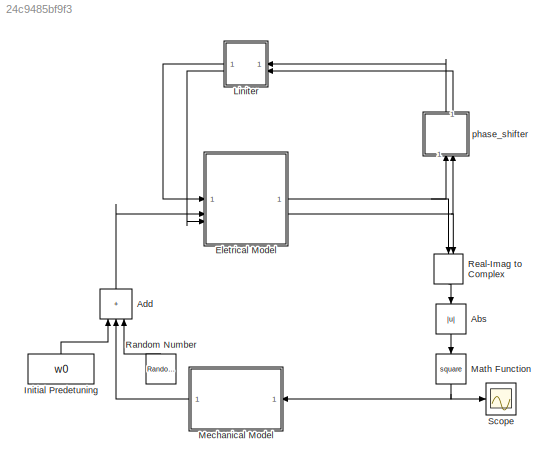
MODEL slx_24c9485bf9f3
KIND model
CONFIG AbsTol = auto
CONFIG EnableMultiTasking = off
CONFIG FixedStep = auto
CONFIG MaxStep = auto
CONFIG MinStep = auto
CONFIG RelTol = 1e-3
CONFIG SampleTimeConstraint = Unconstrained
CONFIG SolverName = VariableStepAuto
CONFIG StartTime = 0.0
CONFIG StopTime = 10
WORKSPACE source: mxarray member
WORKSPACE QL: Simulink.Parameter (value not decoded)
WORKSPACE RL: Simulink.Parameter (value not decoded)
WORKSPACE RQ: Simulink.Parameter (value not decoded)
WORKSPACE Ts: Simulink.Parameter (value not decoded)
WORKSPACE a0: Simulink.Parameter (value not decoded)
WORKSPACE a1: Simulink.Parameter (value not decoded)
WORKSPACE a2: Simulink.Parameter (value not decoded)
WORKSPACE b0: Simulink.Parameter (value not decoded)
WORKSPACE b1: Simulink.Parameter (value not decoded)
WORKSPACE b2: Simulink.Parameter (value not decoded)
WORKSPACE f0: Simulink.Parameter (value not decoded)
WORKSPACE pi: Simulink.Parameter (value not decoded)
WORKSPACE w0: Simulink.Parameter (value not decoded)
WORKSPACE w_hbw: Simulink.Parameter (value not decoded)
BLOCK [Abs] Abs
  NameLocation = left
  SaturateOnIntegerOverflow = off
BLOCK [Sum] Add
  IconShape = rectangular
  Inputs = +++
  NameLocation = right
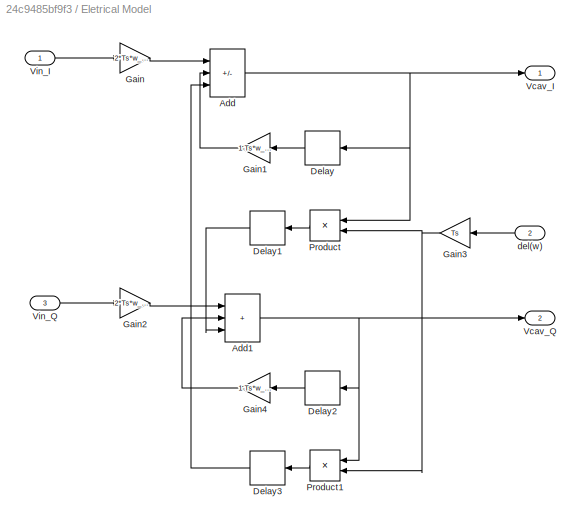
BLOCK [SubSystem] Eletrical Model
BLOCK [Sum] Eletrical Model/Add
  IconShape = rectangular
  Inputs = ++-
BLOCK [Sum] Eletrical Model/Add1
  IconShape = rectangular
  Inputs = +++
BLOCK [Delay] Eletrical Model/Delay
  DelayLength = 1
  InitialCondition = 0
  InputPortMap = u0
BLOCK [Delay] Eletrical Model/Delay1
  DelayLength = 1
  InitialCondition = 0
  InputPortMap = u0
BLOCK [Delay] Eletrical Model/Delay2
  DelayLength = 1
  InitialCondition = 0
  InputPortMap = u0
BLOCK [Delay] Eletrical Model/Delay3
  DelayLength = 1
  InitialCondition = 0
  InputPortMap = u0
BLOCK [Gain] Eletrical Model/Gain
  Gain = 2*Ts*w_hbw*RL
BLOCK [Gain] Eletrical Model/Gain1
  Gain = 1-Ts*w_hbw
BLOCK [Gain] Eletrical Model/Gain2
  Gain = 2*Ts*w_hbw*RL
BLOCK [Gain] Eletrical Model/Gain3
  Gain = Ts
BLOCK [Gain] Eletrical Model/Gain4
  Gain = 1-Ts*w_hbw
BLOCK [Product] Eletrical Model/Product
BLOCK [Product] Eletrical Model/Product1
BLOCK [Outport] Eletrical Model/Vcav_I
BLOCK [Outport] Eletrical Model/Vcav_Q
  Port = 2
BLOCK [Inport] Eletrical Model/Vin_I
BLOCK [Inport] Eletrical Model/Vin_Q
  Port = 3
BLOCK [Inport] Eletrical Model/del(w)
  Port = 2
BLOCK [Constant] Initial Predetuning
  NameLocation = right
  Value = w0
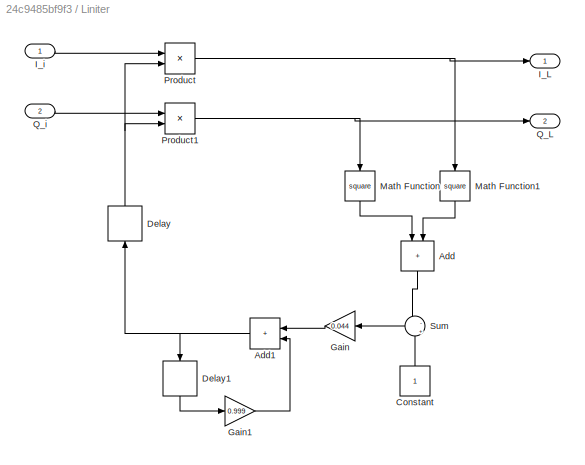
BLOCK [SubSystem] Liniter
BLOCK [Sum] Liniter/Add
  IconShape = rectangular
  NameLocation = left
BLOCK [Sum] Liniter/Add1
  IconShape = rectangular
  NameLocation = top
BLOCK [Constant] Liniter/Constant
  NameLocation = right
BLOCK [Delay] Liniter/Delay
  DelayLength = 1
  InitialCondition = 0
  InputPortMap = u0
  NameLocation = right
BLOCK [Delay] Liniter/Delay1
  DelayLength = 1
  InitialCondition = 0
  InputPortMap = u0
  NameLocation = right
BLOCK [Gain] Liniter/Gain
  Gain = 0.044
BLOCK [Gain] Liniter/Gain1
  Gain = 0.999
BLOCK [Outport] Liniter/I_L
BLOCK [Inport] Liniter/I_i
BLOCK [Math] Liniter/Math Function
  NameLocation = left
  Operator = square
BLOCK [Math] Liniter/Math Function1
  NameLocation = left
  Operator = square
BLOCK [Product] Liniter/Product
BLOCK [Product] Liniter/Product1
BLOCK [Outport] Liniter/Q_L
  Port = 2
BLOCK [Inport] Liniter/Q_i
  Port = 2
BLOCK [Sum] Liniter/Sum
  Inputs = -|+
  NameLocation = top
BLOCK [Math] Math Function
  NameLocation = left
  Operator = square
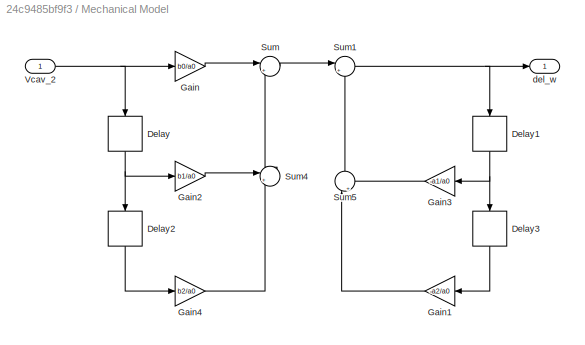
BLOCK [SubSystem] Mechanical Model
BLOCK [Delay] Mechanical Model/Delay
  DelayLength = 1
  InitialCondition = 0
  InputPortMap = u0
  NameLocation = left
BLOCK [Delay] Mechanical Model/Delay1
  DelayLength = 1
  InitialCondition = 0
  InputPortMap = u0
  NameLocation = left
BLOCK [Delay] Mechanical Model/Delay2
  DelayLength = 1
  InitialCondition = 0
  InputPortMap = u0
  NameLocation = left
BLOCK [Delay] Mechanical Model/Delay3
  DelayLength = 1
  InitialCondition = 0
  InputPortMap = u0
  NameLocation = left
BLOCK [Gain] Mechanical Model/Gain
  Gain = b0/a0
BLOCK [Gain] Mechanical Model/Gain1
  Gain = -a2/a0
BLOCK [Gain] Mechanical Model/Gain2
  Gain = b1/a0
BLOCK [Gain] Mechanical Model/Gain3
  Gain = -a1/a0
BLOCK [Gain] Mechanical Model/Gain4
  Gain = b2/a0
BLOCK [Sum] Mechanical Model/Sum
  Inputs = |++
BLOCK [Sum] Mechanical Model/Sum1
  Inputs = |++
BLOCK [Sum] Mechanical Model/Sum4
  Inputs = |++
BLOCK [Sum] Mechanical Model/Sum5
  Inputs = |++
  NameLocation = right
BLOCK [Inport] Mechanical Model/Vcav_2
BLOCK [Outport] Mechanical Model/del_w
BLOCK [RandomNumber] Random Number
  NameLocation = right
  SampleTime = 0.1
BLOCK [RealImagToComplex] Real-Imag to Complex
  NameLocation = left
BLOCK [Scope] Scope
  Floating = off
  NumInputPorts = 1
  ScopeSpecificationString = Simulink.scopes.TimeScopeBlockCfg('CurrentConfiguration', extmgr.ConfigurationSet(extmgr.Configuration('Core','General UI',true),extmgr.Configuration('Core','Source UI',true),extmgr.Configuration('Sources','WiredSimulink',true,'DataLoggingVariableName','ScopeData1'),extmgr.Configuration('Visuals','Time Domain',true,'SerializedDisplays',{struct('MinYLimReal','-79092043336483083373491807735287873994...<+3338ch>
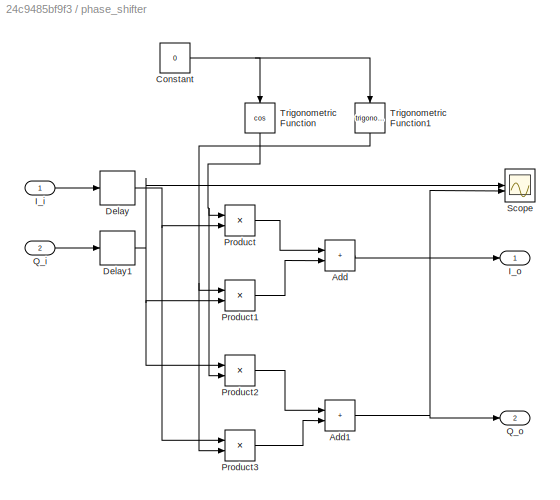
BLOCK [SubSystem] phase_shifter
  NameLocation = right
BLOCK [Sum] phase_shifter/Add
  IconShape = rectangular
BLOCK [Sum] phase_shifter/Add1
  IconShape = rectangular
BLOCK [Constant] phase_shifter/Constant
  Value = 0
BLOCK [Delay] phase_shifter/Delay
  InitialCondition = 0
  InputPortMap = u0
BLOCK [Delay] phase_shifter/Delay1
  InitialCondition = 0
  InputPortMap = u0
BLOCK [Inport] phase_shifter/I_i
BLOCK [Outport] phase_shifter/I_o
BLOCK [Product] phase_shifter/Product
BLOCK [Product] phase_shifter/Product1
BLOCK [Product] phase_shifter/Product2
BLOCK [Product] phase_shifter/Product3
BLOCK [Inport] phase_shifter/Q_i
  Port = 2
BLOCK [Outport] phase_shifter/Q_o
  Port = 2
BLOCK [Scope] phase_shifter/Scope
  Floating = off
  NumInputPorts = 2
  ScopeSpecificationString = Simulink.scopes.TimeScopeBlockCfg('CurrentConfiguration', extmgr.ConfigurationSet(extmgr.Configuration('Core','General UI',true),extmgr.Configuration('Core','Source UI',true),extmgr.Configuration('Sources','WiredSimulink',true),extmgr.Configuration('Visuals','Time Domain',true,'SerializedDisplays',{struct('MinYLimReal','-1.00000','MaxYLimReal','1.00000','YLabelReal','','MinYLimMag','0.00000','MaxY...<+1333ch>
BLOCK [Trigonometry] phase_shifter/Trigonometric Function
  NameLocation = left
  Operator = cos
BLOCK [Trigonometry] phase_shifter/Trigonometric Function1
  NameLocation = left
LINE Abs:1 -> Math Function:1
LINE Add:1 -> Eletrical Model:2
NET Eletrical Model/Add1:1 -> Eletrical Model/Delay2:1, Eletrical Model/Product1:1, Eletrical Model/Vcav_Q:1
NET Eletrical Model/Add:1 -> Eletrical Model/Delay:1, Eletrical Model/Product:1, Eletrical Model/Vcav_I:1
LINE Eletrical Model/Delay1:1 -> Eletrical Model/Add1:3
LINE Eletrical Model/Delay2:1 -> Eletrical Model/Gain4:1
LINE Eletrical Model/Delay3:1 -> Eletrical Model/Add:3
LINE Eletrical Model/Delay:1 -> Eletrical Model/Gain1:1
LINE Eletrical Model/Gain1:1 -> Eletrical Model/Add:2
LINE Eletrical Model/Gain2:1 -> Eletrical Model/Add1:1
NET Eletrical Model/Gain3:1 -> Eletrical Model/Product1:2, Eletrical Model/Product:2
LINE Eletrical Model/Gain4:1 -> Eletrical Model/Add1:2
LINE Eletrical Model/Gain:1 -> Eletrical Model/Add:1
LINE Eletrical Model/Product1:1 -> Eletrical Model/Delay3:1
LINE Eletrical Model/Product:1 -> Eletrical Model/Delay1:1
LINE Eletrical Model/Vin_I:1 -> Eletrical Model/Gain:1
LINE Eletrical Model/Vin_Q:1 -> Eletrical Model/Gain2:1
LINE Eletrical Model/del(w):1 -> Eletrical Model/Gain3:1
NET Eletrical Model:1 -> Real-Imag to Complex:1, phase_shifter:1
NET Eletrical Model:2 -> Real-Imag to Complex:2, phase_shifter:2
LINE Initial Predetuning:1 -> Add:1
NET Liniter/Add1:1 -> Liniter/Delay1:1, Liniter/Delay:1
LINE Liniter/Add:1 -> Liniter/Sum:1
LINE Liniter/Constant:1 -> Liniter/Sum:2
LINE Liniter/Delay1:1 -> Liniter/Gain1:1
NET Liniter/Delay:1 -> Liniter/Product1:2, Liniter/Product:2
LINE Liniter/Gain1:1 -> Liniter/Add1:2
LINE Liniter/Gain:1 -> Liniter/Add1:1
LINE Liniter/I_i:1 -> Liniter/Product:1
LINE Liniter/Math Function1:1 -> Liniter/Add:2
LINE Liniter/Math Function:1 -> Liniter/Add:1
NET Liniter/Product1:1 -> Liniter/Math Function:1, Liniter/Q_L:1
NET Liniter/Product:1 -> Liniter/I_L:1, Liniter/Math Function1:1
LINE Liniter/Q_i:1 -> Liniter/Product1:1
LINE Liniter/Sum:1 -> Liniter/Gain:1
LINE Liniter:1 -> Eletrical Model:1
LINE Liniter:2 -> Eletrical Model:3
NET Math Function:1 -> Mechanical Model:1, Scope:1
NET Mechanical Model/Delay1:1 -> Mechanical Model/Delay3:1, Mechanical Model/Gain3:1
LINE Mechanical Model/Delay2:1 -> Mechanical Model/Gain4:1
LINE Mechanical Model/Delay3:1 -> Mechanical Model/Gain1:1
NET Mechanical Model/Delay:1 -> Mechanical Model/Delay2:1, Mechanical Model/Gain2:1
LINE Mechanical Model/Gain1:1 -> Mechanical Model/Sum5:1
LINE Mechanical Model/Gain2:1 -> Mechanical Model/Sum4:1
LINE Mechanical Model/Gain3:1 -> Mechanical Model/Sum5:2
LINE Mechanical Model/Gain4:1 -> Mechanical Model/Sum4:2
LINE Mechanical Model/Gain:1 -> Mechanical Model/Sum:1
NET Mechanical Model/Sum1:1 -> Mechanical Model/Delay1:1, Mechanical Model/del_w:1
LINE Mechanical Model/Sum4:1 -> Mechanical Model/Sum:2
LINE Mechanical Model/Sum5:1 -> Mechanical Model/Sum1:2
LINE Mechanical Model/Sum:1 -> Mechanical Model/Sum1:1
NET Mechanical Model/Vcav_2:1 -> Mechanical Model/Delay:1, Mechanical Model/Gain:1
LINE Mechanical Model:1 -> Add:2
LINE Random Number:1 -> Add:3
LINE Real-Imag to Complex:1 -> Abs:1
NET phase_shifter/Add1:1 -> phase_shifter/Q_o:1, phase_shifter/Scope:2
LINE phase_shifter/Add:1 -> phase_shifter/I_o:1
NET phase_shifter/Constant:1 -> phase_shifter/Trigonometric Function1:1, phase_shifter/Trigonometric Function:1
NET phase_shifter/Delay1:1 -> phase_shifter/Product1:2, phase_shifter/Product2:1, phase_shifter/Scope:1
NET phase_shifter/Delay:1 -> phase_shifter/Product3:1, phase_shifter/Product:2
LINE phase_shifter/I_i:1 -> phase_shifter/Delay:1
LINE phase_shifter/Product1:1 -> phase_shifter/Add:2
LINE phase_shifter/Product2:1 -> phase_shifter/Add1:1
LINE phase_shifter/Product3:1 -> phase_shifter/Add1:2
LINE phase_shifter/Product:1 -> phase_shifter/Add:1
LINE phase_shifter/Q_i:1 -> phase_shifter/Delay1:1
NET phase_shifter/Trigonometric Function1:1 -> phase_shifter/Product1:1, phase_shifter/Product3:2
NET phase_shifter/Trigonometric Function:1 -> phase_shifter/Product2:2, phase_shifter/Product:1
LINE phase_shifter:1 -> Liniter:1
LINE phase_shifter:2 -> Liniter:2
note: NET lines group one-source signal fan-out (src -> all destinations, sorted); 1:1 wires keep LINE
